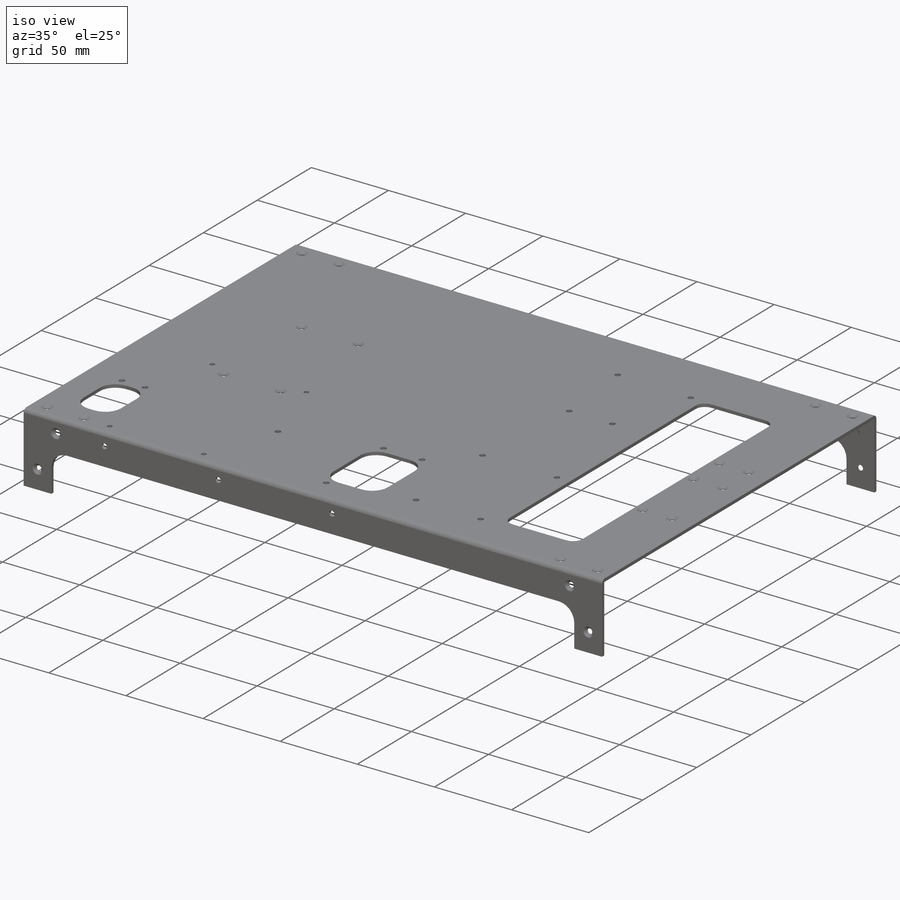
[diagram: iso view]
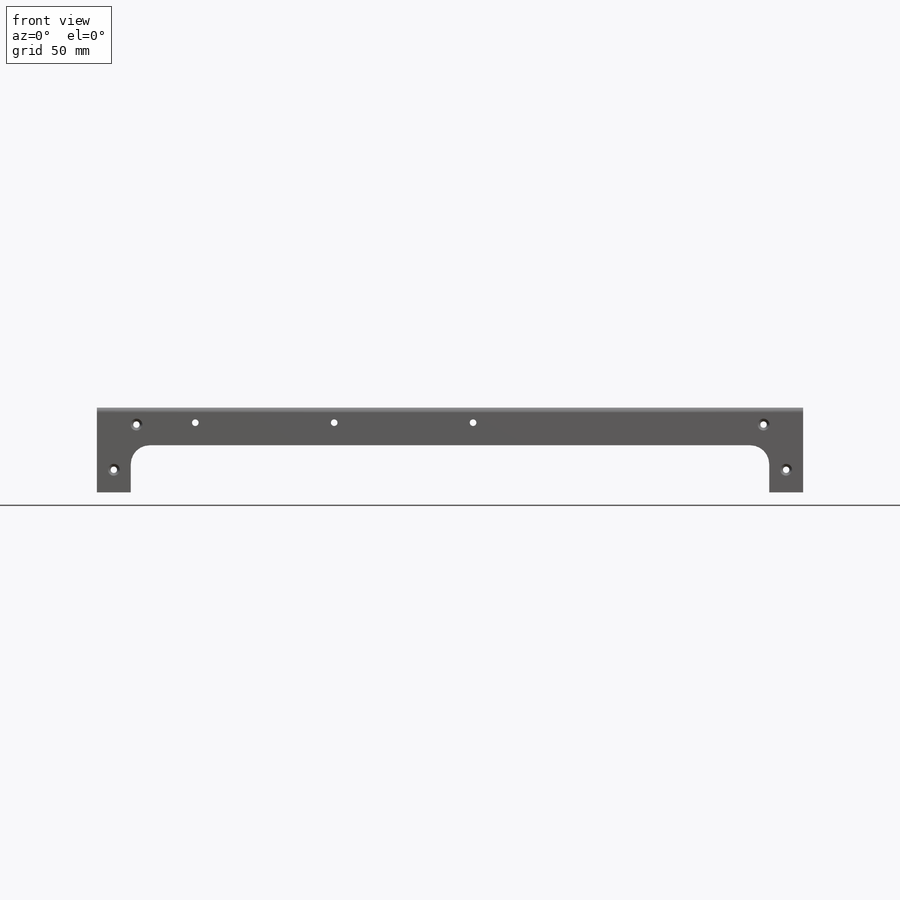
[diagram: front view]
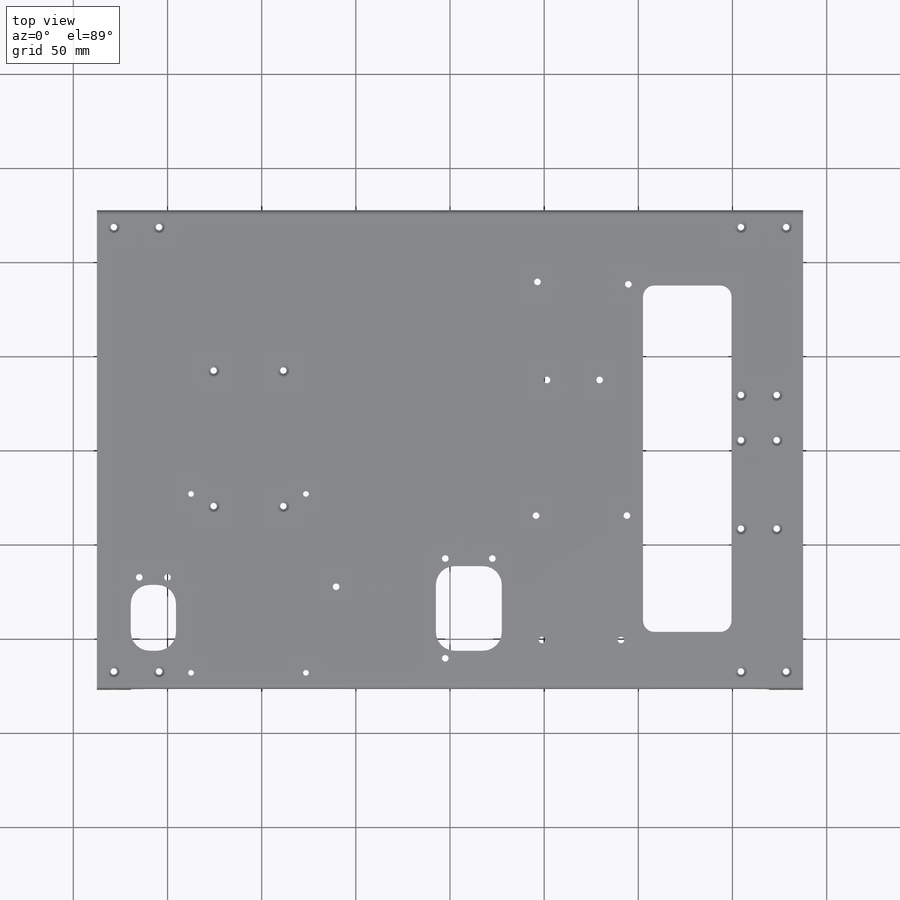
[diagram: top view]
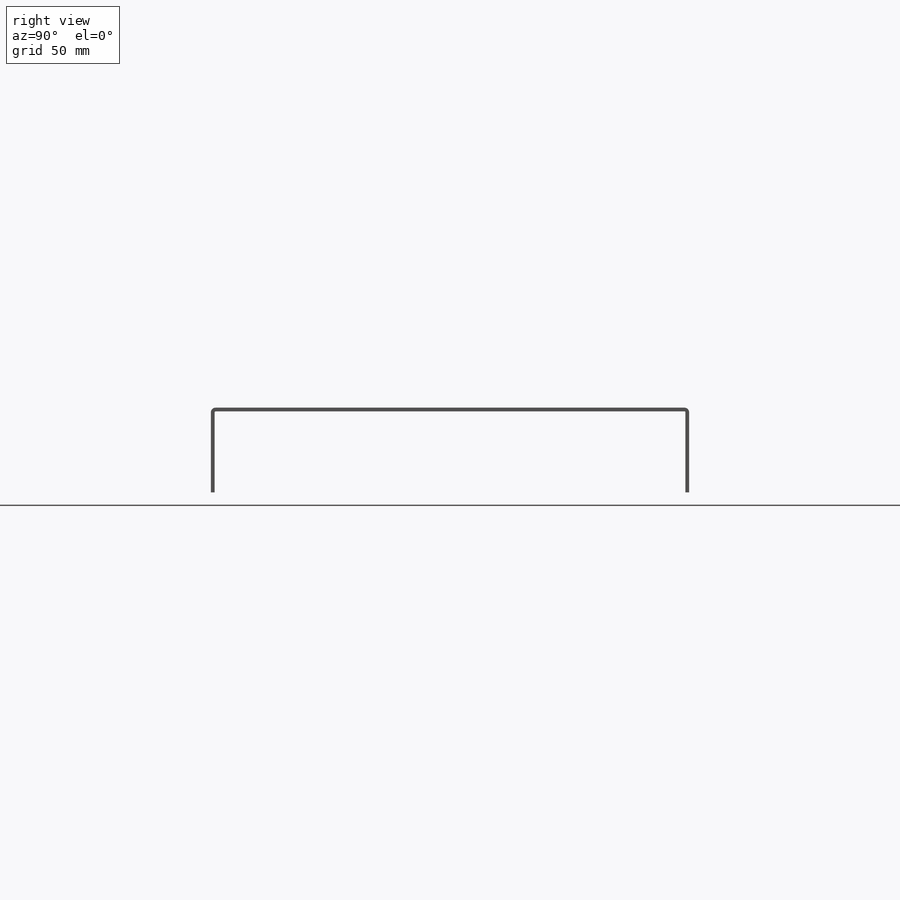
[diagram: right view]
SOLIDWORKS PART (.sldprt)
format: sldprt  version: not decoded by parser v0  size: 695,296 bytes
history: native  units: mm
features: sketch x16, cut_extrude x9, hole x3, material x1, extrude x1 (+11 scaffold rows collapsed)
feature tree (41):
  scaffold x11  (default folders/planes/origin — collapsed)
  material  "6061-T6 (SS)"
  sketch  "Sketch1"  dims[c1.D1=2.5mm c1.D2=203.2mm c1.D3=2.0mm c1.D4=100.5mm c2.D2=250.0mm]
  extrude  "Boss-Extrude1"  Depth=375mm
  sketch  "Sketch2"  dims[D5=10.0mm D1=18.0mm D2=20.0mm D3=18.0mm D4=45.0mm D6=45.0mm]
  cut_extrude  "Cut-Extrude1"  [1 undecoded]
  sketch  "Sketch5"  dims[c1.D9=10.0mm c1.D5=6.0mm c1.D1=30.0mm c1.D2=40.0mm c1.D3=38.0mm c1.D4=180.0mm c2.D5=10.0mm c2.D6=10.0mm c2.D7=10.0mm c2.D8=10.0mm c2.D4=290.0mm c2.D1=30.0mm]
  cut_extrude  "Cut-Extrude4"  Depth=10mm
  sketch  "Sketch6"  dims[c1.D1=4.5mm c1.D6=~6.244095mm c2.D1=3.0mm c2.D2=9.0mm c2.D3=9.0mm c2.D4=33.0mm c2.D5=~107.611225mm c2.D6=9.0mm c2.D7=21.0mm c2.D8=21.0mm c3.D5=10.0mm]
  cut_extrude  "Cut-Extrude5"  [1 undecoded]
  sketch  "Sketch9"  dims[D1=3.0mm D2=9.0mm D3=33.0mm D4=9.0mm D5=33.0mm D6=9.0mm D7=9.0mm]
  cut_extrude  "Cut-Extrude8"  Depth=10mm
  sketch  "Sketch19"  dims[c1.D1=4.5mm c1.D4=4.5mm c2.D1=3.0mm c2.D2=130.0mm c2.D3=20.0mm c2.D4=1.0mm c2.D5=9.0mm c3.D4=1.0mm c3.D2=61.0mm c3.D3=30.0mm c4.D4=60.0mm]
  cut_extrude  "Cut-Extrude9"  Depth=10mm
  sketch  "Sketch20"  dims[D1=3.5mm]
  cut_extrude  "Cut-Extrude10"  [1 undecoded]
  hole  "CSK for M3 Flat Head Machine Screw1"  Diameter=3.4mm Depth=10mm
  sketch  "Sketch22"
  sketch  "Sketch21"  dims[hole-wizard template sketch: 46 standard entries collapsed; hole parameters above]
  hole  "CSK for M3 Flat Head Machine Screw2"  Diameter=3.4mm Depth=10mm
  sketch  "Sketch24"
  sketch  "Sketch25"  dims[hole-wizard template sketch: 46 standard entries collapsed; hole parameters above]
  hole  "CSK for M3 Flat Head Machine Screw3"  Diameter=3.4mm Depth=10mm
  sketch  "Sketch27"
  sketch  "Sketch26"  dims[hole-wizard template sketch: 46 standard entries collapsed; hole parameters above]
  sketch  "Sketch28"  dims[c1.D5=10.0mm c1.D6=~7.192845mm c1.D8=4.5mm c1.D9=10.0mm c1.D14=3.5mm c1.D1=20.0mm c1.D2=45.0mm c1.D3=180.0mm c1.D4=215.0mm c2.D6=60.0mm c2.D7=30.0mm c2.D10=18.0mm c2.D11=20.0mm c2.D12=24.0mm c2.D13=35.0mm c3.D6=4.0mm c3.D7=4.0mm c3.D8=5.0mm c3.D15=5.0mm c3.D16=15.0mm c3.D17=4.0mm]
  cut_extrude  "Cut-Extrude11"  Depth=10mm
  sketch  "Sketch29"  dims[D1=3.5mm]
  cut_extrude  "Cut-Extrude12"  Depth=10mm
  sketch  "Sketch30"  dims[D3=3.5mm D1=127.0mm D2=54.0mm]
  cut_extrude  "Cut-Extrude13"  [1 undecoded]
decode coverage: 22 of 29 modeling features carry decoded parameters
note: ~ marks probable driven/reference dimensions
note: 4 parameter values undecoded
summary: no parameter record found for 4 features
note: suppression state not decoded; provenance and decode notes live in map.json
